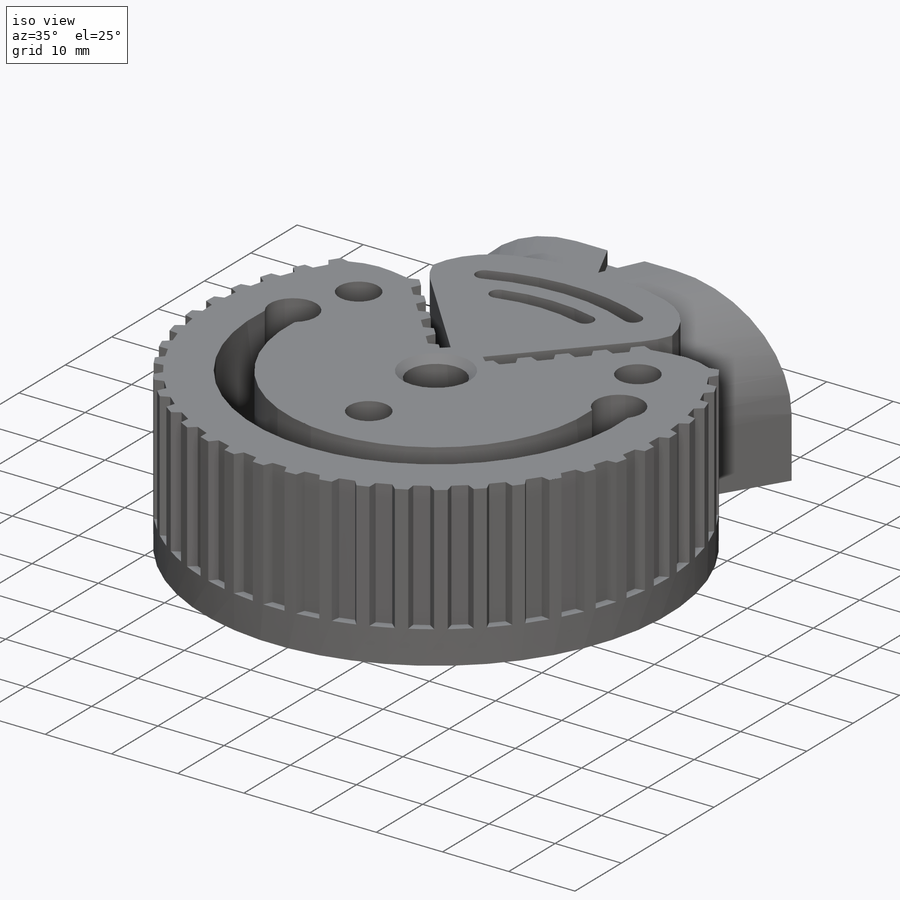
[diagram: iso view]
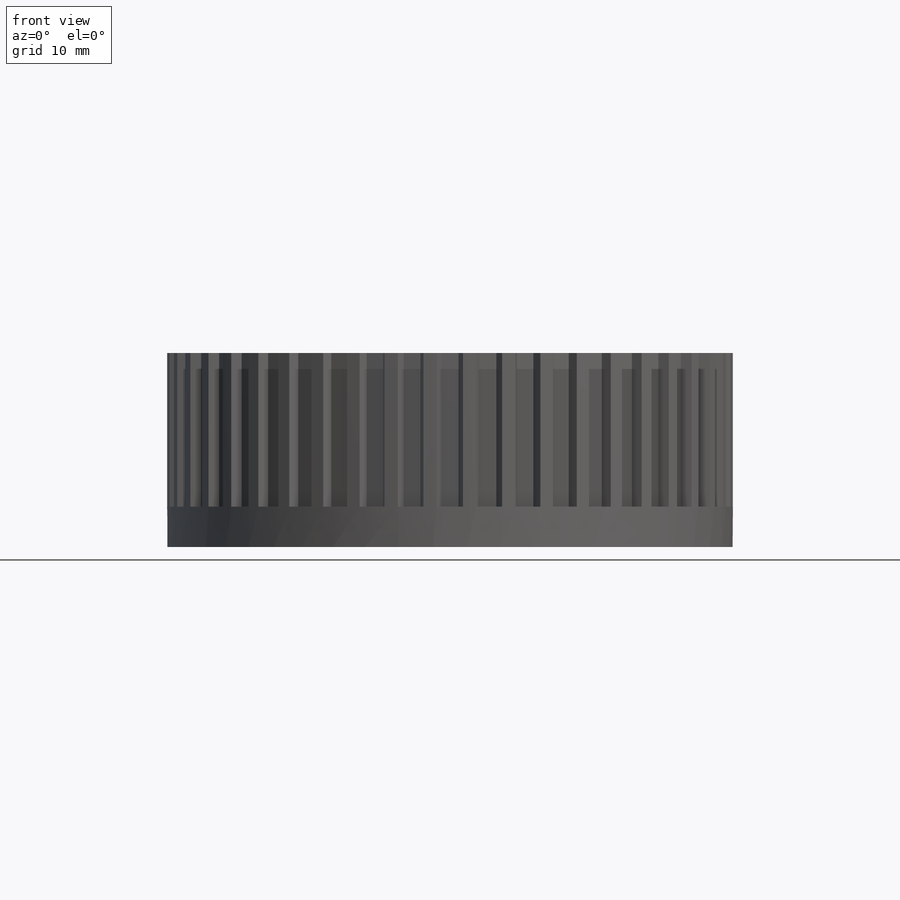
[diagram: front view]
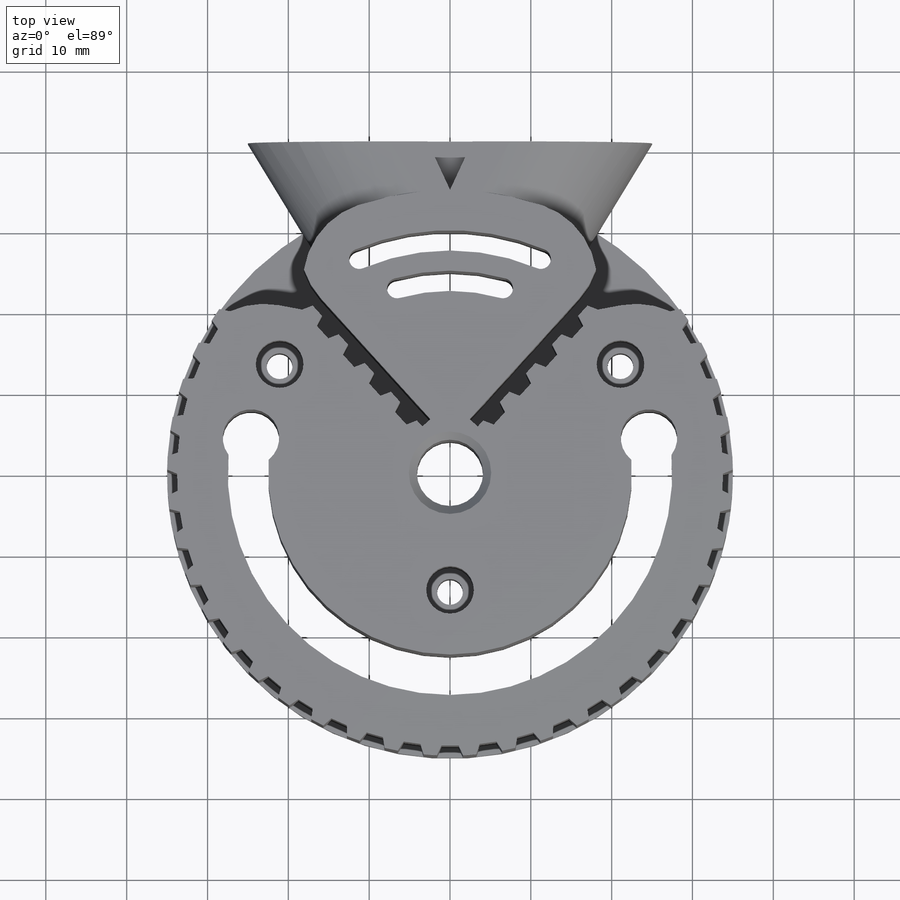
[diagram: top view]
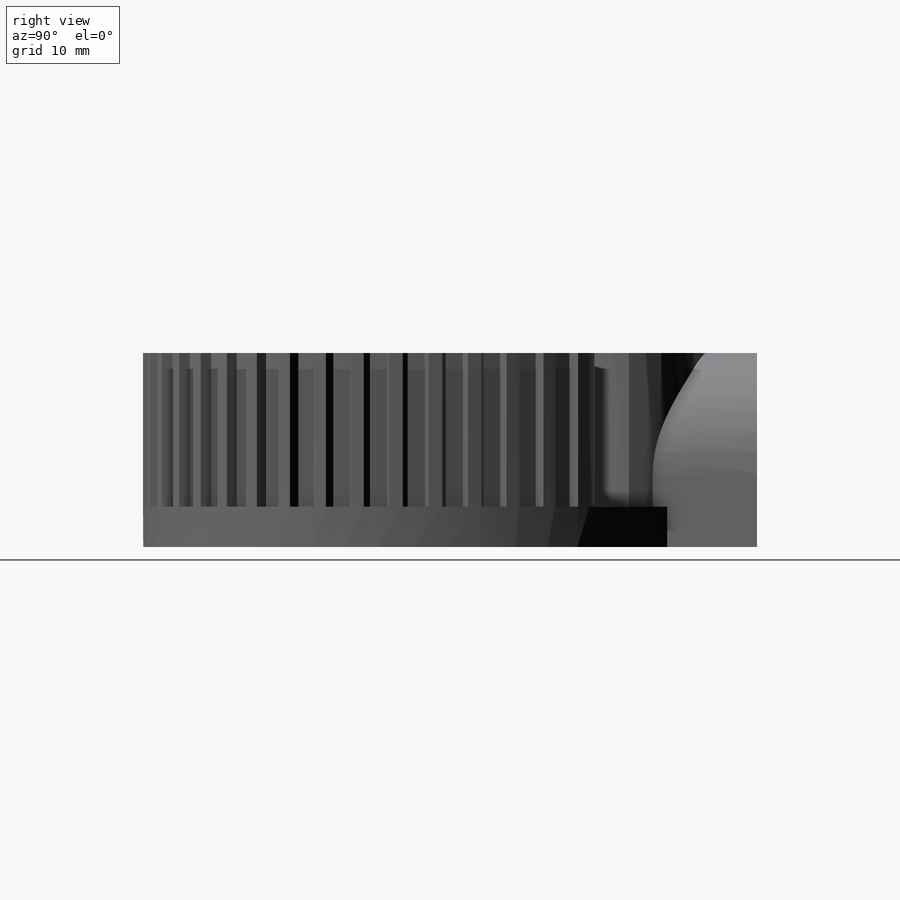
[diagram: right view]
SOLIDWORKS PART (.sldprt)
format: sldprt  version: not decoded by parser v0  size: 1,026,048 bytes
history: native  units: mm
features: sketch x12, cut_extrude x10, fillet x4, plane x3, extrude x2, chamfer x2, material x1, pattern_circular x1 (+9 scaffold rows collapsed)
feature tree (44):
  scaffold x9  (default folders/planes/origin — collapsed)
  material  "Material <sin especificar>"
  plane  "Alzado"
  plane  "Planta"
  plane  "Vista lateral"
  sketch  "Croquis1"  dims[D1=70.0mm D4=8.2mm D2=6.0mm D3=50.0mm D5=~11.117134mm]
  extrude  "Saliente-Extruir1"  Depth=24mm
  sketch  "Croquis2"  dims[D1=1.25mm D2=2.1mm D3=0.5mm D4=0.5mm D5=1.75mm]
  cut_extrude  "Cortar-Extruir1"  Depth=19mm
  sketch  "Croquis12"  dims[D3=3.3mm D1=30.0mm D2=12.0mm]
  sketch  "Croquis13"  dims[D1=10.0mm D2=6.0mm D3=6.0mm D4=2.7mm]
  pattern_circular  "MatrizC2"  Count=45 Angle=360deg
  sketch  "Croquis8"  dims[c1.D1=70.5mm c1.D2=67.0mm c2.D1=71.5mm c2.D2=66.5mm c2.D4=41.0mm c3.D4=30.9deg c4.D4=~30.643931mm c4.D3=0.0mm]
  extrude  "Saliente-Extruir3"  [1 undecoded]
  fillet  "Redondeo7"  Radius=15mm
  sketch  "Croquis9"  dims[c1.D1=0.5mm c1.D2=1.7mm c1.D3=0.5mm c1.D4=2.1mm c1.D5=0.5mm c1.D6=1.7mm c1.D7=0.5mm c1.D8=2.1mm c1.D9=0.5mm c1.D10=1.7mm c1.D11=0.5mm c1.D12=2.1mm c1.D13=0.5mm c1.D14=1.7mm c1.D15=0.5mm c1.D16=2.1mm c1.D17=0.5mm c1.D18=1.0mm c1.D19=1.3mm c1.D20=~40.223981mm c2.D20=~179.891877deg c3.D20=~40.223981mm c4.D20=~179.891877deg c5.D20=2.65mm]
  sketch  "Croquis10"  dims[c1.D1=60.0mm c1.D2=55.0mm c1.D4=50.0mm c1.D5=45.0mm c1.D3=27.5mm c2.D3=23.0deg]
  cut_extrude  "Cortar-Extruir5"  Depth=29mm
  sketch  "Croquis11"  dims[c1.D1=55.0mm c1.D2=45.0mm c1.D4=7.0mm c1.D3=22.5mm c2.D3=90.0deg c3.D3=~15.909903mm c4.D3=100.0deg]
  cut_extrude  "Cortar-Extruir6"  Depth=29mm
  cut_extrude  "Cortar-Extruir11"  Depth=12mm
  sketch  "Croquis15"  dims[D1=6.0mm]
  cut_extrude  "Cortar-Extruir13"  Depth=2.7mm
  cut_extrude  "Cortar-Extruir14"  Depth=15mm
  cut_extrude  "Cortar-Extruir16"  [1 undecoded]
  fillet  "Redondeo15"  Radius=15mm
  fillet  "Redondeo16"  Radius=10mm
  fillet  "Redondeo17"  Radius=10mm
  chamfer  "Chaflán1"  Distance=1mm Angle=45deg
  chamfer  "Chaflán2"  Distance=1mm Angle=45deg
  sketch  "Croquis16"  dims[c1.D1=50.0mm c1.D3=5.9mm c1.D4=3.2mm c1.D2=76.0mm c2.D2=122.5deg c2.D3=14.5mm]
  cut_extrude  "Cortar-Extruir18"  Depth=30mm
  sketch  "Croquis17"  dims[D1=5.9mm]
  cut_extrude  "Cortar-Extruir19"  Depth=14mm
  sketch  "Croquis18"  dims[c1.D1=6.0mm c1.D2=35.9mm c2.D2=15.0deg c2.D1=6.0mm c3.D2=~2.673336mm c4.D2=25.0deg c4.D3=5.0mm]
  cut_extrude  "Cortar-Extruir21"  Depth=2mm
decode coverage: 29 of 31 modeling features carry decoded parameters
note: ~ marks probable driven/reference dimensions
note: 2 parameter values undecoded
note: suppression state not decoded; provenance and decode notes live in map.json
